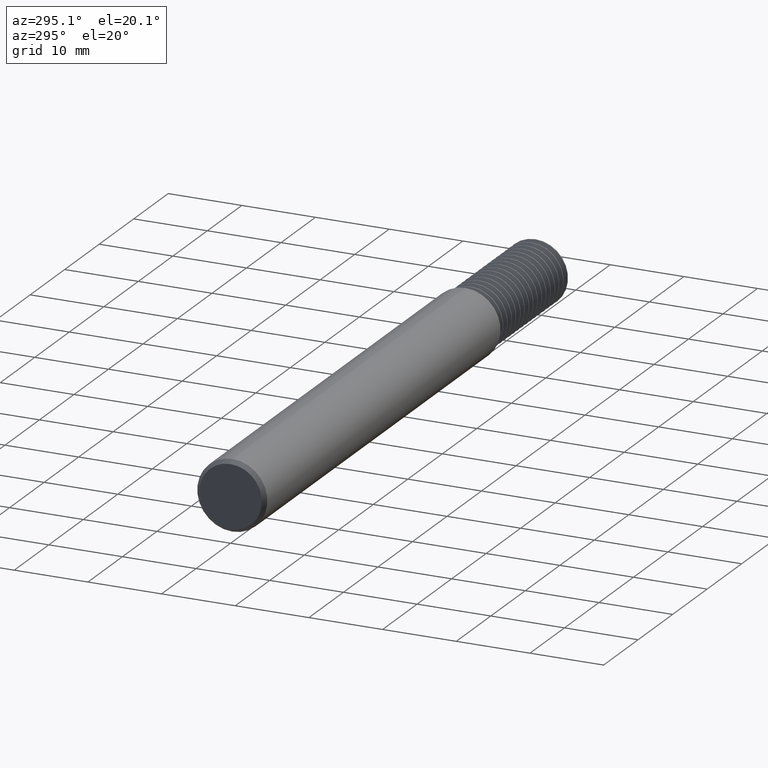
[diagram: clean part render]
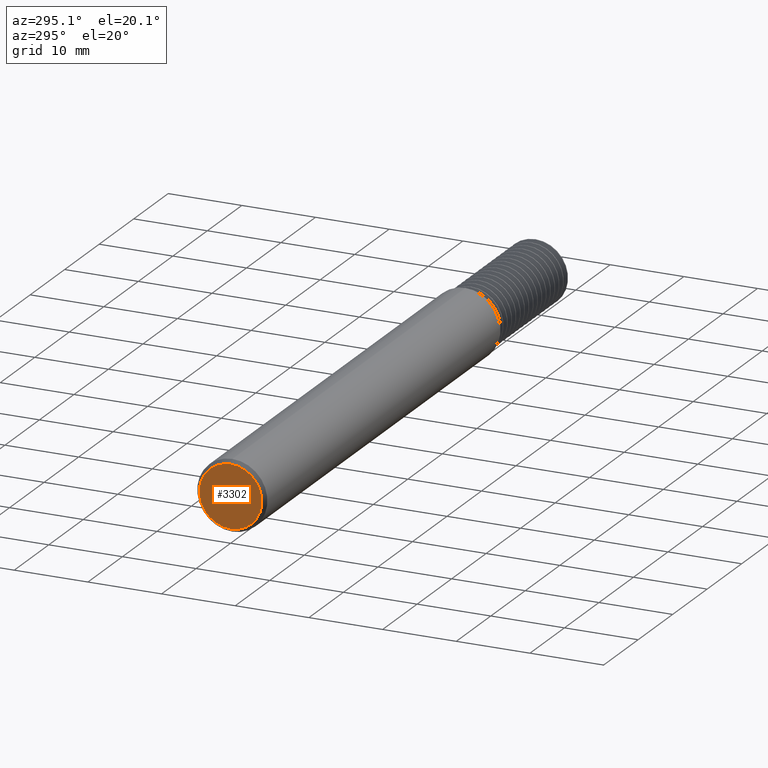
[diagram: same view with one face highlighted and labeled with its STEP entity id]
A machine part, auxiliary view. The second image highlights one B-rep face of the part: STEP entity #3302.
In plain terms, the highlighted planar face has unit normal (1, 0, 0).
Its self-contained STEP definition (entity closure, byte-faithful):
#47 = VERTEX_POINT ( 'NONE', #3042 ) ;
#52 = CARTESIAN_POINT ( 'NONE',  ( 0.000000000000000000, 0.000000000000000000, 0.000000000000000000 ) ) ;
#74 = FACE_OUTER_BOUND ( 'NONE', #575, .T. ) ;
#103 = EDGE_CURVE ( 'NONE', #1006, #47, #3265, .T. ) ;
#289 = AXIS2_PLACEMENT_3D ( 'NONE', #52, #565, #3385 ) ;
#317 = PLANE ( 'NONE',  #560 ) ;
#560 = AXIS2_PLACEMENT_3D ( 'NONE', #1102, #1417, #1172 ) ;
#565 = DIRECTION ( 'NONE',  ( -1.000000000000000000, -0.000000000000000000, -0.000000000000000000 ) ) ;
#575 = EDGE_LOOP ( 'NONE', ( #812, #2444 ) ) ;
#812 = ORIENTED_EDGE ( 'NONE', *, *, #103, .T. ) ;
#922 = DIRECTION ( 'NONE',  ( -1.000000000000000000, -0.000000000000000000, -0.000000000000000000 ) ) ;
#1006 = VERTEX_POINT ( 'NONE', #3061 ) ;
#1102 = CARTESIAN_POINT ( 'NONE',  ( 0.000000000000000000, 0.000000000000000000, 0.000000000000000000 ) ) ;
#1172 = DIRECTION ( 'NONE',  ( 0.000000000000000000, 0.000000000000000000, -1.000000000000000000 ) ) ;
#1211 = CARTESIAN_POINT ( 'NONE',  ( 0.000000000000000000, 0.000000000000000000, 0.000000000000000000 ) ) ;
#1417 = DIRECTION ( 'NONE',  ( 1.000000000000000000, 0.000000000000000000, 0.000000000000000000 ) ) ;
#2031 = EDGE_CURVE ( 'NONE', #47, #1006, #2306, .T. ) ;
#2306 = CIRCLE ( 'NONE', #2604, 0.1673500000000000543 ) ;
#2444 = ORIENTED_EDGE ( 'NONE', *, *, #2031, .T. ) ;
#2604 = AXIS2_PLACEMENT_3D ( 'NONE', #1211, #922, #3148 ) ;
#3042 = CARTESIAN_POINT ( 'NONE',  ( 0.000000000000000000, 2.171911098287831589E-17, 0.1673500000000000543 ) ) ;
#3061 = CARTESIAN_POINT ( 'NONE',  ( 0.000000000000000000, 0.000000000000000000, -0.1673500000000000543 ) ) ;
#3148 = DIRECTION ( 'NONE',  ( 0.000000000000000000, 0.000000000000000000, -1.000000000000000000 ) ) ;
#3265 = CIRCLE ( 'NONE', #289, 0.1673500000000000543 ) ;
#3302 = ADVANCED_FACE ( 'NONE', ( #74 ), #317, .F. ) ;
#3385 = DIRECTION ( 'NONE',  ( 0.000000000000000000, 0.000000000000000000, -1.000000000000000000 ) ) ;